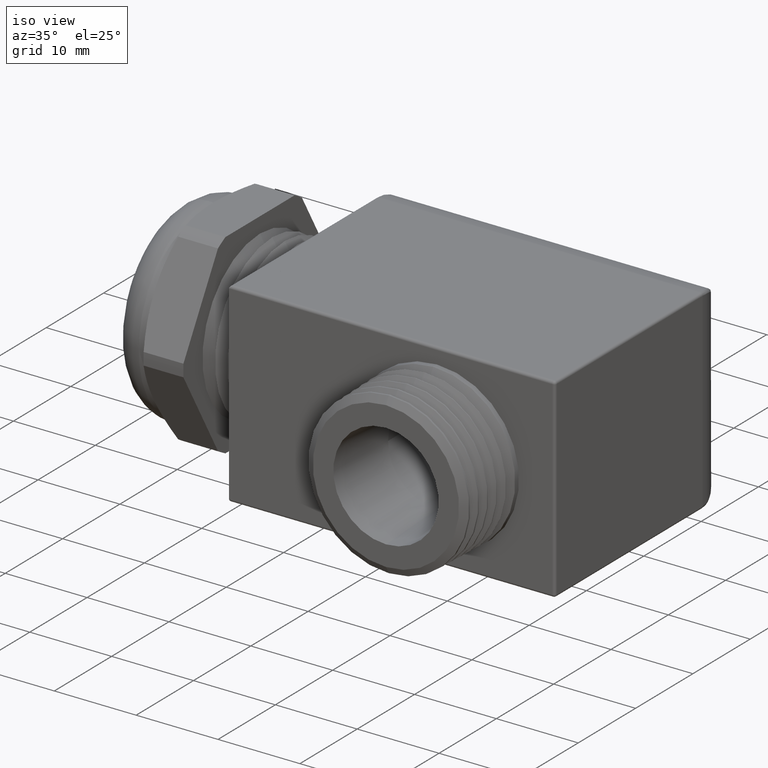
[diagram: clean part render]
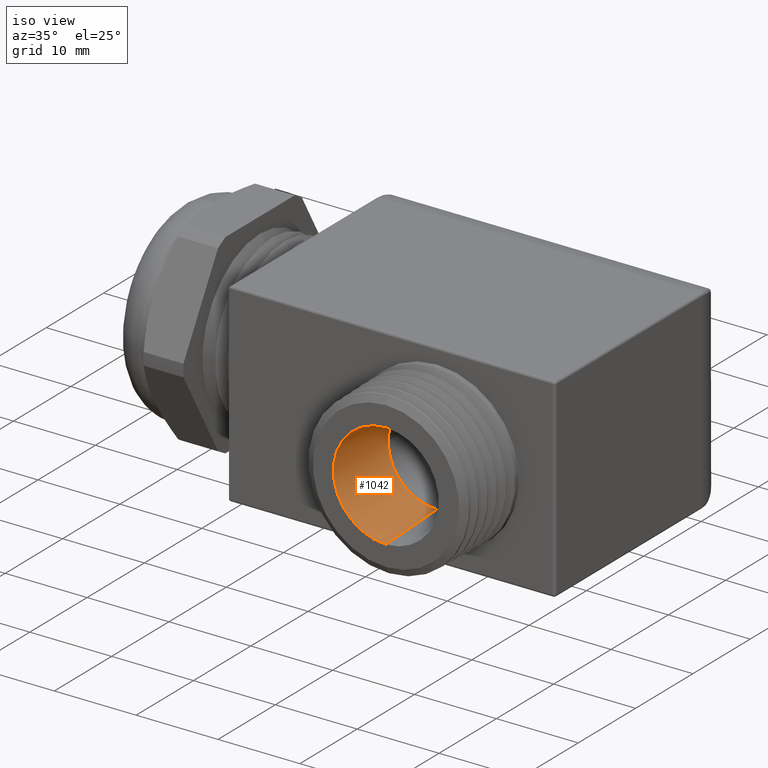
[diagram: same view with one face highlighted and labeled with its STEP entity id]
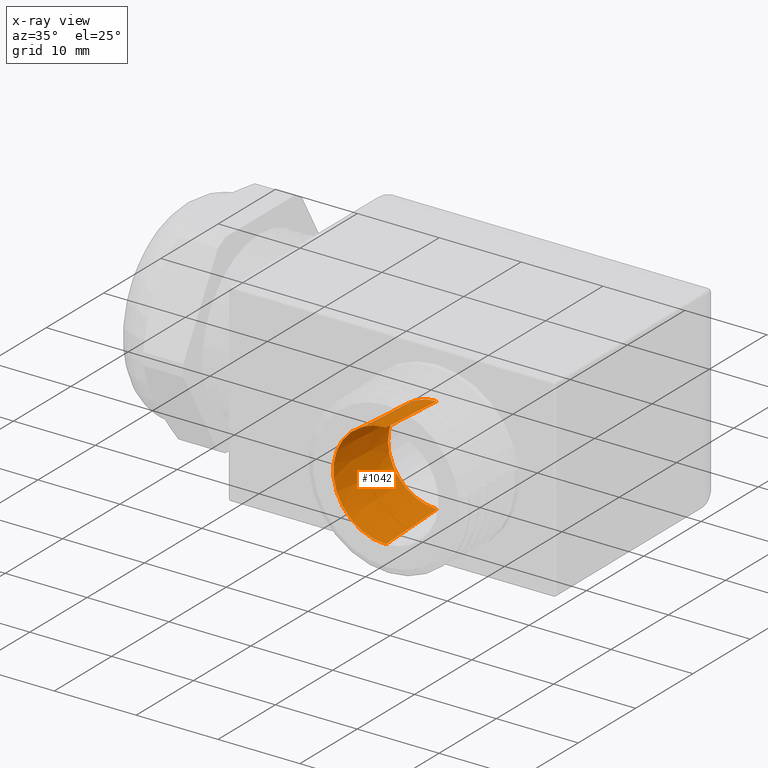
[diagram: x-ray of the same camera — body ghosted, the highlighted face saturated]
A machine part, iso view. The second image highlights one B-rep face of the part: STEP entity #1042.
The next image is the same camera in x-ray: the body ghosted, the highlighted face saturated — about 1% of this face is hidden behind the body in this view.
In plain terms, the highlighted conical surface has half-angle 3 deg.
Its self-contained STEP definition (entity closure, byte-faithful):
#900 = ORIENTED_EDGE ( 'NONE', *, *, #1035, .T. ) ;
#912 = EDGE_CURVE ( 'NONE', #1087, #1014, #3161, .T. ) ;
#913 = ORIENTED_EDGE ( 'NONE', *, *, #914, .F. ) ;
#914 = EDGE_CURVE ( 'NONE', #1014, #1008, #3157, .T. ) ;
#915 = ORIENTED_EDGE ( 'NONE', *, *, #912, .F. ) ;
#953 = EDGE_LOOP ( 'NONE', ( #954, #900, #913, #915, #1030 ) ) ;
#954 = ORIENTED_EDGE ( 'NONE', *, *, #955, .F. ) ;
#955 = EDGE_CURVE ( 'NONE', #956, #964, #3366, .T. ) ;
#956 = VERTEX_POINT ( 'NONE', #3384 ) ;
#964 = VERTEX_POINT ( 'NONE', #3397 ) ;
#1008 = VERTEX_POINT ( 'NONE', #3368 ) ;
#1014 = VERTEX_POINT ( 'NONE', #3282 ) ;
#1030 = ORIENTED_EDGE ( 'NONE', *, *, #1086, .F. ) ;
#1035 = EDGE_CURVE ( 'NONE', #956, #1008, #3243, .T. ) ;
#1042 = ADVANCED_FACE ( 'NONE', ( #3229 ), #3573, .F. ) ;
#1086 = EDGE_CURVE ( 'NONE', #964, #1087, #3437, .T. ) ;
#1087 = VERTEX_POINT ( 'NONE', #3432 ) ;
#3153 = DIRECTION ( 'NONE',  ( 0.0000000000000000000, 0.0000000000000000000, 1.000000000000000000 ) ) ;
#3154 = DIRECTION ( 'NONE',  ( 0.0000000000000000000, 1.000000000000000000, 0.0000000000000000000 ) ) ;
#3155 = CARTESIAN_POINT ( 'NONE',  ( 1.000155367231638600, -0.9499999999999999600, -2.785979454945908300E-017 ) ) ;
#3156 = AXIS2_PLACEMENT_3D ( 'NONE', #3155, #3154, #3153 ) ;
#3157 = CIRCLE ( 'NONE', #3156, 0.2533427227490645500 ) ;
#3158 = DIRECTION ( 'NONE',  ( 0.0000000000000000000, -0.9986295347545738300, -0.05233595624294434800 ) ) ;
#3159 = VECTOR ( 'NONE', #3158, 39.37007874015748900 ) ;
#3160 = CARTESIAN_POINT ( 'NONE',  ( 1.000155367231638600, -0.9499999999999999600, -0.2533427227490646100 ) ) ;
#3161 = LINE ( 'NONE', #3160, #3159 ) ;
#3229 = FACE_OUTER_BOUND ( 'NONE', #953, .T. ) ;
#3240 = DIRECTION ( 'NONE',  ( 6.409306129323774100E-018, -0.9986295347545738300, 0.05233595624294434800 ) ) ;
#3241 = VECTOR ( 'NONE', #3240, 39.37007874015748900 ) ;
#3242 = CARTESIAN_POINT ( 'NONE',  ( 1.000155367231638600, -0.9499999999999999600, 0.2533427227490645000 ) ) ;
#3243 = LINE ( 'NONE', #3242, #3241 ) ;
#3282 = CARTESIAN_POINT ( 'NONE',  ( 1.000155367231638600, -0.9499999999999999600, -0.2533427227490646100 ) ) ;
#3362 = DIRECTION ( 'NONE',  ( 0.0000000000000000000, 0.0000000000000000000, -1.000000000000000000 ) ) ;
#3363 = DIRECTION ( 'NONE',  ( 0.0000000000000000000, -1.000000000000000000, 0.0000000000000000000 ) ) ;
#3364 = CARTESIAN_POINT ( 'NONE',  ( 1.000155367231638600, -0.6000000000000007500, -2.785979454945908300E-017 ) ) ;
#3365 = AXIS2_PLACEMENT_3D ( 'NONE', #3364, #3363, #3362 ) ;
#3366 = CIRCLE ( 'NONE', #3365, 0.2349999999999999900 ) ;
#3368 = CARTESIAN_POINT ( 'NONE',  ( 1.000155367231638600, -0.9499999999999999600, 0.2533427227490645000 ) ) ;
#3384 = CARTESIAN_POINT ( 'NONE',  ( 1.000155367231638600, -0.6000000000000007500, 0.2349999999999999600 ) ) ;
#3397 = CARTESIAN_POINT ( 'NONE',  ( 0.7651553672316385700, -0.6000000000000007500, 2.877919977996281100E-017 ) ) ;
#3432 = CARTESIAN_POINT ( 'NONE',  ( 1.000155367231638600, -0.6000000000000007500, -0.2350000000000000100 ) ) ;
#3433 = DIRECTION ( 'NONE',  ( 0.0000000000000000000, 0.0000000000000000000, -1.000000000000000000 ) ) ;
#3434 = DIRECTION ( 'NONE',  ( 0.0000000000000000000, -1.000000000000000000, 0.0000000000000000000 ) ) ;
#3435 = CARTESIAN_POINT ( 'NONE',  ( 1.000155367231638600, -0.6000000000000007500, -2.785979454945908300E-017 ) ) ;
#3436 = AXIS2_PLACEMENT_3D ( 'NONE', #3435, #3434, #3433 ) ;
#3437 = CIRCLE ( 'NONE', #3436, 0.2349999999999999900 ) ;
#3490 = AXIS2_PLACEMENT_3D ( 'NONE', #3586, #3579, #3541 ) ;
#3541 = DIRECTION ( 'NONE',  ( 0.0000000000000000000, 0.0000000000000000000, -1.000000000000000000 ) ) ;
#3573 = CONICAL_SURFACE ( 'NONE', #3490, 0.2533427227490645500, 0.05235987755983040300 ) ;
#3579 = DIRECTION ( 'NONE',  ( 0.0000000000000000000, -1.000000000000000000, 0.0000000000000000000 ) ) ;
#3586 = CARTESIAN_POINT ( 'NONE',  ( 1.000155367231638600, -0.9499999999999999600, -2.785979454945908300E-017 ) ) ;